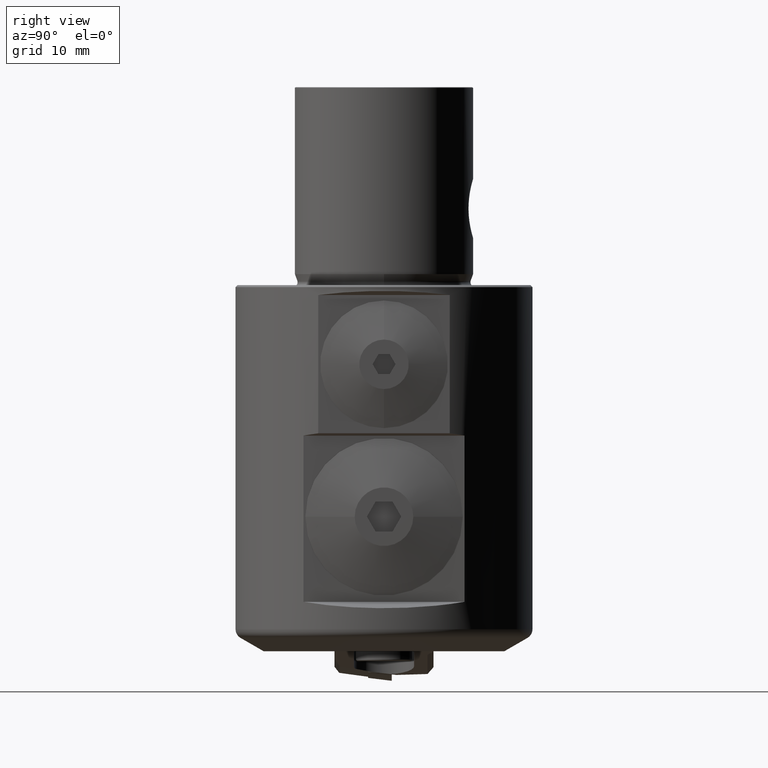
[diagram: clean part render]
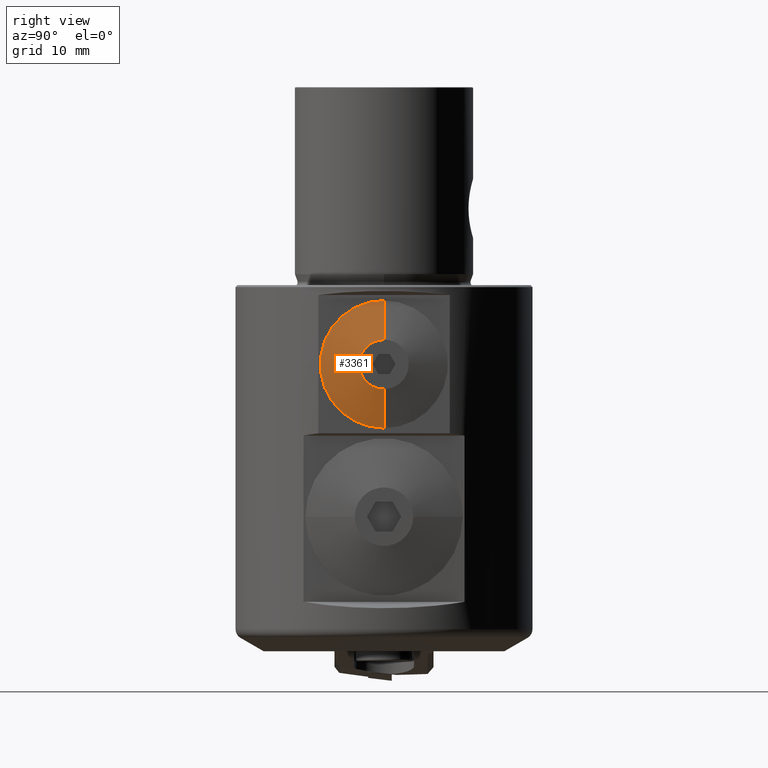
[diagram: same view with one face highlighted and labeled with its STEP entity id]
A machine part, right view. The second image highlights one B-rep face of the part: STEP entity #3361.
In plain terms, the highlighted conical surface has half-angle 76.477 deg.
Its self-contained STEP definition (entity closure, byte-faithful):
#2759=VERTEX_POINT('NONE',#6775);
#3361=ADVANCED_FACE('NONE',(#7444),#7445,.T.);
#3523=EDGE_CURVE('NONE',#4573,#5401,#7631,.T.);
#4573=VERTEX_POINT('NONE',#8794);
#4601=EDGE_CURVE('NONE',#5401,#5455,#8823,.T.);
#5379=EDGE_CURVE('NONE',#2759,#5455,#9661,.T.);
#5401=VERTEX_POINT('NONE',#9687);
#5455=VERTEX_POINT('NONE',#9746);
#5685=EDGE_CURVE('NONE',#4573,#2759,#9998,.T.);
#6775=CARTESIAN_POINT('',(13.45,7.89897185450043E-016,-14.45));
#7444=FACE_OUTER_BOUND('',#14649,.T.);
#7445=CONICAL_SURFACE('',#14650,6.45,1.334772648169);
#7631=CIRCLE('',#15001,2.5);
#8794=CARTESIAN_POINT('',(14.4,5.48029442618441E-016,-10.5));
#8823=LINE('',#18465,#18466);
#9661=CIRCLE('',#21203,6.45);
#9687=CARTESIAN_POINT('',(14.4,0.0,-5.5));
#9746=CARTESIAN_POINT('',(13.45,0.0,-1.55));
#9998=LINE('',#22209,#22210);
#14649=EDGE_LOOP('',(#24396,#24397,#24398,#24399));
#14650=AXIS2_PLACEMENT_3D('',#24400,#24401,#24402);
#15001=AXIS2_PLACEMENT_3D('',#24700,#24701,#24702);
#18465=CARTESIAN_POINT('',(13.45,0.0,-1.55));
#18466=VECTOR('',#25932,1000.0);
#21203=AXIS2_PLACEMENT_3D('',#26653,#26654,#26655);
#22209=CARTESIAN_POINT('',(13.45,7.89897185450042E-016,-14.45));
#22210=VECTOR('',#27039,1000.0);
#24396=ORIENTED_EDGE('',*,*,#5685,.F.);
#24397=ORIENTED_EDGE('',*,*,#3523,.T.);
#24398=ORIENTED_EDGE('',*,*,#4601,.T.);
#24399=ORIENTED_EDGE('',*,*,#5379,.F.);
#24400=CARTESIAN_POINT('',(13.45,0.0,-8.0));
#24401=DIRECTION('',(-1.0,-0.0,5.3789875224087E-016));
#24402=DIRECTION('',(5.3789875224087E-016,0.0,1.0));
#24700=CARTESIAN_POINT('',(14.4,0.0,-8.0));
#24701=DIRECTION('',(-1.0,0.0,6.30708480942542E-016));
#24702=DIRECTION('',(6.30708480942542E-016,0.0,1.0));
#25932=DIRECTION('',(-0.233838405482985,0.0,0.972275475429251));
#26653=CARTESIAN_POINT('',(13.45,0.0,-8.0));
#26654=DIRECTION('',(-1.0,0.0,5.3789875224087E-016));
#26655=DIRECTION('',(5.3789875224087E-016,0.0,1.0));
#27039=DIRECTION('',(-0.233838405482986,1.1906940488739E-016,-0.97227547542925));